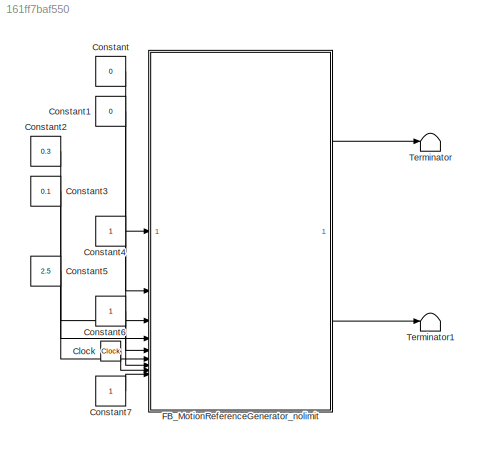
MODEL slx_161ff7baf550
KIND model
CONFIG AbsTol = auto
CONFIG EnableMultiTasking = off
CONFIG FixedStep = auto
CONFIG MaxStep = auto
CONFIG MinStep = auto
CONFIG RelTol = 1e-3
CONFIG SampleTimeConstraint = Unconstrained
CONFIG SolverName = VariableStepAuto
CONFIG StartTime = 0.0
CONFIG StopTime = 20
BLOCK [Clock] Clock
BLOCK [Constant] Constant
  Value = 0
BLOCK [Constant] Constant1
  Value = 0
BLOCK [Constant] Constant2
  Value = 0.3
BLOCK [Constant] Constant3
  Value = 0.1
BLOCK [Constant] Constant4
BLOCK [Constant] Constant5
  Value = 2.5
BLOCK [Constant] Constant6
BLOCK [Constant] Constant7
  OutDataTypeStr = boolean
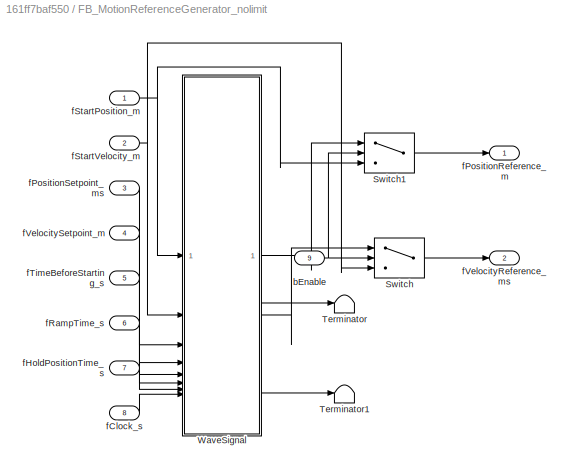
BLOCK [SubSystem] FB_MotionReferenceGenerator_nolimit
  TreatAsAtomicUnit = on
  VariantControl = Ramp_Profile
BLOCK [Switch] FB_MotionReferenceGenerator_nolimit/Switch
  Criteria = u2 > Threshold
  InputSameDT = off
  SaturateOnIntegerOverflow = off
BLOCK [Switch] FB_MotionReferenceGenerator_nolimit/Switch1
  Criteria = u2 > Threshold
  InputSameDT = off
  SaturateOnIntegerOverflow = off
BLOCK [Terminator] FB_MotionReferenceGenerator_nolimit/Terminator
BLOCK [Terminator] FB_MotionReferenceGenerator_nolimit/Terminator1
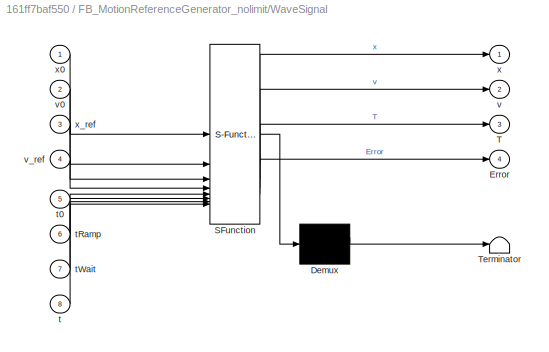
BLOCK [SubSystem] FB_MotionReferenceGenerator_nolimit/WaveSignal
  ErrorFcn = Stateflow.Translate.translate
  PermitHierarchicalResolution = ExplicitOnly
  SFBlockType = MATLAB Function
  TreatAsAtomicUnit = on
BLOCK [Demux] FB_MotionReferenceGenerator_nolimit/WaveSignal/ Demux 
  Outputs = 1
BLOCK [S-Function] FB_MotionReferenceGenerator_nolimit/WaveSignal/ SFunction 
  EnableBusSupport = on
  FunctionName = sf_sfun
  PortCounts = [8 5]
  SFcnIsStateOwnerBlock = off
  SFunctionDeploymentMode = off
  Tag = Stateflow S-Function 1
BLOCK [Terminator] FB_MotionReferenceGenerator_nolimit/WaveSignal/ Terminator 
BLOCK [Outport] FB_MotionReferenceGenerator_nolimit/WaveSignal/Error
  Port = 4
  VectorParamsAs1DForOutWhenUnconnected = off
BLOCK [Outport] FB_MotionReferenceGenerator_nolimit/WaveSignal/T
  Port = 3
  VectorParamsAs1DForOutWhenUnconnected = off
BLOCK [Inport] FB_MotionReferenceGenerator_nolimit/WaveSignal/t
  Port = 8
BLOCK [Inport] FB_MotionReferenceGenerator_nolimit/WaveSignal/t0
  Port = 5
BLOCK [Inport] FB_MotionReferenceGenerator_nolimit/WaveSignal/tRamp
  Port = 6
BLOCK [Inport] FB_MotionReferenceGenerator_nolimit/WaveSignal/tWait
  Port = 7
BLOCK [Outport] FB_MotionReferenceGenerator_nolimit/WaveSignal/v
  Port = 2
  VectorParamsAs1DForOutWhenUnconnected = off
BLOCK [Inport] FB_MotionReferenceGenerator_nolimit/WaveSignal/v0
  Port = 2
BLOCK [Inport] FB_MotionReferenceGenerator_nolimit/WaveSignal/v_ref
  Port = 4
BLOCK [Outport] FB_MotionReferenceGenerator_nolimit/WaveSignal/x
  VectorParamsAs1DForOutWhenUnconnected = off
BLOCK [Inport] FB_MotionReferenceGenerator_nolimit/WaveSignal/x0
BLOCK [Inport] FB_MotionReferenceGenerator_nolimit/WaveSignal/x_ref
  Port = 3
BLOCK [Inport] FB_MotionReferenceGenerator_nolimit/bEnable
  OutDataTypeStr = boolean
  Port = 9
BLOCK [Inport] FB_MotionReferenceGenerator_nolimit/fClock_s
  Port = 8
BLOCK [Inport] FB_MotionReferenceGenerator_nolimit/fHoldPositionTime_s
  Port = 7
BLOCK [Outport] FB_MotionReferenceGenerator_nolimit/fPositionReference_m
  VectorParamsAs1DForOutWhenUnconnected = off
BLOCK [Inport] FB_MotionReferenceGenerator_nolimit/fPositionSetpoint_ms
  Port = 3
BLOCK [Inport] FB_MotionReferenceGenerator_nolimit/fRampTime_s
  Port = 6
BLOCK [Inport] FB_MotionReferenceGenerator_nolimit/fStartPosition_m
BLOCK [Inport] FB_MotionReferenceGenerator_nolimit/fStartVelocity_m
  Port = 2
BLOCK [Inport] FB_MotionReferenceGenerator_nolimit/fTimeBeforeStarting_s
  Port = 5
BLOCK [Outport] FB_MotionReferenceGenerator_nolimit/fVelocityReference_ms
  Port = 2
  VectorParamsAs1DForOutWhenUnconnected = off
BLOCK [Inport] FB_MotionReferenceGenerator_nolimit/fVelocitySetpoint_m
  Port = 4
BLOCK [Terminator] Terminator
BLOCK [Terminator] Terminator1
LINE Clock:1 -> FB_MotionReferenceGenerator_nolimit:8
LINE Constant1:1 -> FB_MotionReferenceGenerator_nolimit:2
LINE Constant2:1 -> FB_MotionReferenceGenerator_nolimit:3
LINE Constant3:1 -> FB_MotionReferenceGenerator_nolimit:4
LINE Constant4:1 -> FB_MotionReferenceGenerator_nolimit:5
LINE Constant5:1 -> FB_MotionReferenceGenerator_nolimit:6
LINE Constant6:1 -> FB_MotionReferenceGenerator_nolimit:7
LINE Constant7:1 -> FB_MotionReferenceGenerator_nolimit:9
LINE Constant:1 -> FB_MotionReferenceGenerator_nolimit:1
LINE FB_MotionReferenceGenerator_nolimit/Switch1:1 -> FB_MotionReferenceGenerator_nolimit/fPositionReference_m:1
LINE FB_MotionReferenceGenerator_nolimit/Switch:1 -> FB_MotionReferenceGenerator_nolimit/fVelocityReference_ms:1
LINE FB_MotionReferenceGenerator_nolimit/WaveSignal:1 -> FB_MotionReferenceGenerator_nolimit/Switch1:1
LINE FB_MotionReferenceGenerator_nolimit/WaveSignal:2 -> FB_MotionReferenceGenerator_nolimit/Switch:1
LINE FB_MotionReferenceGenerator_nolimit/WaveSignal:3 -> FB_MotionReferenceGenerator_nolimit/Terminator:1
LINE FB_MotionReferenceGenerator_nolimit/WaveSignal:4 -> FB_MotionReferenceGenerator_nolimit/Terminator1:1
NET FB_MotionReferenceGenerator_nolimit/bEnable:1 -> FB_MotionReferenceGenerator_nolimit/Switch1:2, FB_MotionReferenceGenerator_nolimit/Switch:2
LINE FB_MotionReferenceGenerator_nolimit/fClock_s:1 -> FB_MotionReferenceGenerator_nolimit/WaveSignal:8
LINE FB_MotionReferenceGenerator_nolimit/fHoldPositionTime_s:1 -> FB_MotionReferenceGenerator_nolimit/WaveSignal:7
LINE FB_MotionReferenceGenerator_nolimit/fPositionSetpoint_ms:1 -> FB_MotionReferenceGenerator_nolimit/WaveSignal:3
LINE FB_MotionReferenceGenerator_nolimit/fRampTime_s:1 -> FB_MotionReferenceGenerator_nolimit/WaveSignal:6
NET FB_MotionReferenceGenerator_nolimit/fStartPosition_m:1 -> FB_MotionReferenceGenerator_nolimit/Switch1:3, FB_MotionReferenceGenerator_nolimit/WaveSignal:1
NET FB_MotionReferenceGenerator_nolimit/fStartVelocity_m:1 -> FB_MotionReferenceGenerator_nolimit/Switch:3, FB_MotionReferenceGenerator_nolimit/WaveSignal:2
LINE FB_MotionReferenceGenerator_nolimit/fTimeBeforeStarting_s:1 -> FB_MotionReferenceGenerator_nolimit/WaveSignal:5
LINE FB_MotionReferenceGenerator_nolimit/fVelocitySetpoint_m:1 -> FB_MotionReferenceGenerator_nolimit/WaveSignal:4
LINE FB_MotionReferenceGenerator_nolimit:1 -> Terminator:1
LINE FB_MotionReferenceGenerator_nolimit:2 -> Terminator1:1
note: NET lines group one-source signal fan-out (src -> all destinations, sorted); 1:1 wires keep LINE
CHART FB_MotionReferenceGenerator_nolimit/WaveSignal states=1 transitions=1
  STATE_LABEL 'eML_blk_kernel()'
  STATE_LABEL 'SCRIPT:\nfunction [x,v,T, Error] = fcn(x0,v0, x_ref,v_ref,t0,tRamp,tWait,t)\nx_SP = x_ref - x0;\nvs=v_ref;\nslopeExt=v0-vs;\nslopeRetr=-vs-v0;\n\nas = vs/tRamp;\ns_acc=(vs^2-v0^2)/as;\n\ntHold=(x_SP-s_acc)/vs;\n\nif tHold < 0\n    Error = 1;\nelse\n    Error = 0;\nend\n\nt1=tRamp;\nt2=tHold;\nt3=tRamp;\nt4=tWait;\nt5=t1;\nt6=t2;\nt7=t3;\n\nx = x0;\nx1 = x0 + v0*((t0+t1)-t0)-(slopeExt/t1)*((t0+t1)-t0)^2/2;\nx2 = x1 + vs*((t0+...<+1233ch>'
CHART  states=0 transitions=0
